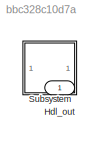
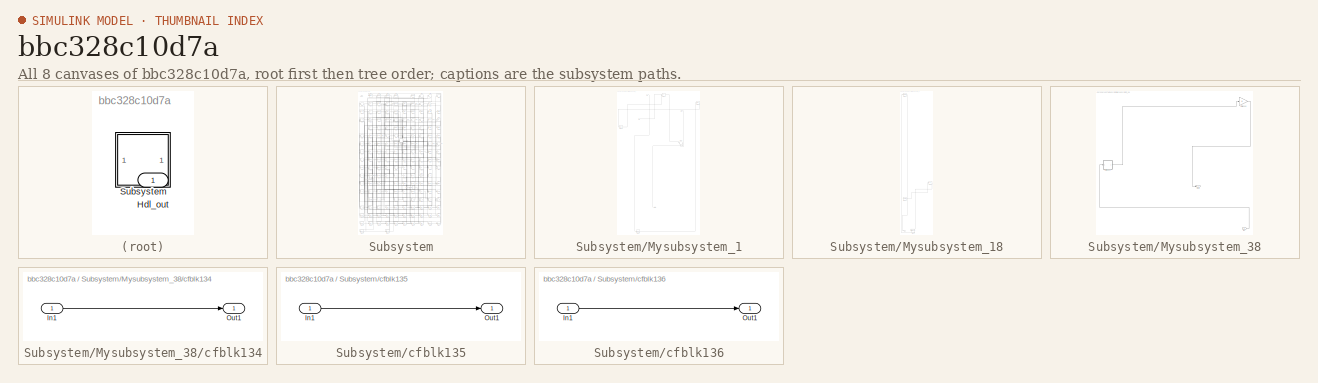
[diagram: thumbnail index - all 8 canvases of the model, root first then tree order]
MODEL slx_bbc328c10d7a
KIND model
CONFIG AbsTol = auto
CONFIG EnableMultiTasking = off
CONFIG FixedStep = auto
CONFIG MaxStep = auto
CONFIG MinStep = auto
CONFIG RelTol = 1e-3
CONFIG SampleTimeConstraint = Unconstrained
CONFIG SolverName = VariableStepAuto
CONFIG StartTime = 0.0
CONFIG StopTime = 10.0
BLOCK [Outport] Hdl_out
  OutDataTypeStr = uint8
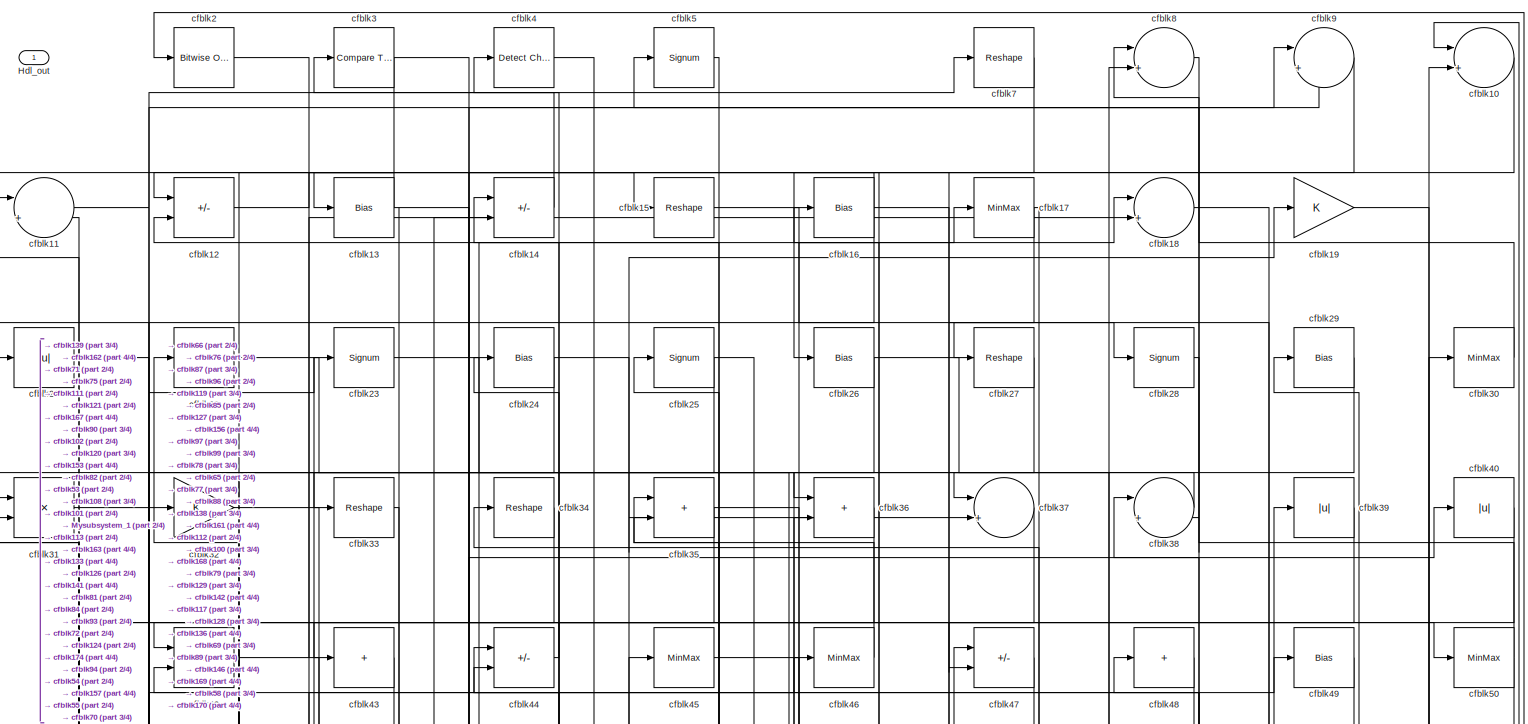
[diagram: Subsystem - part 1/4, full width, top band]
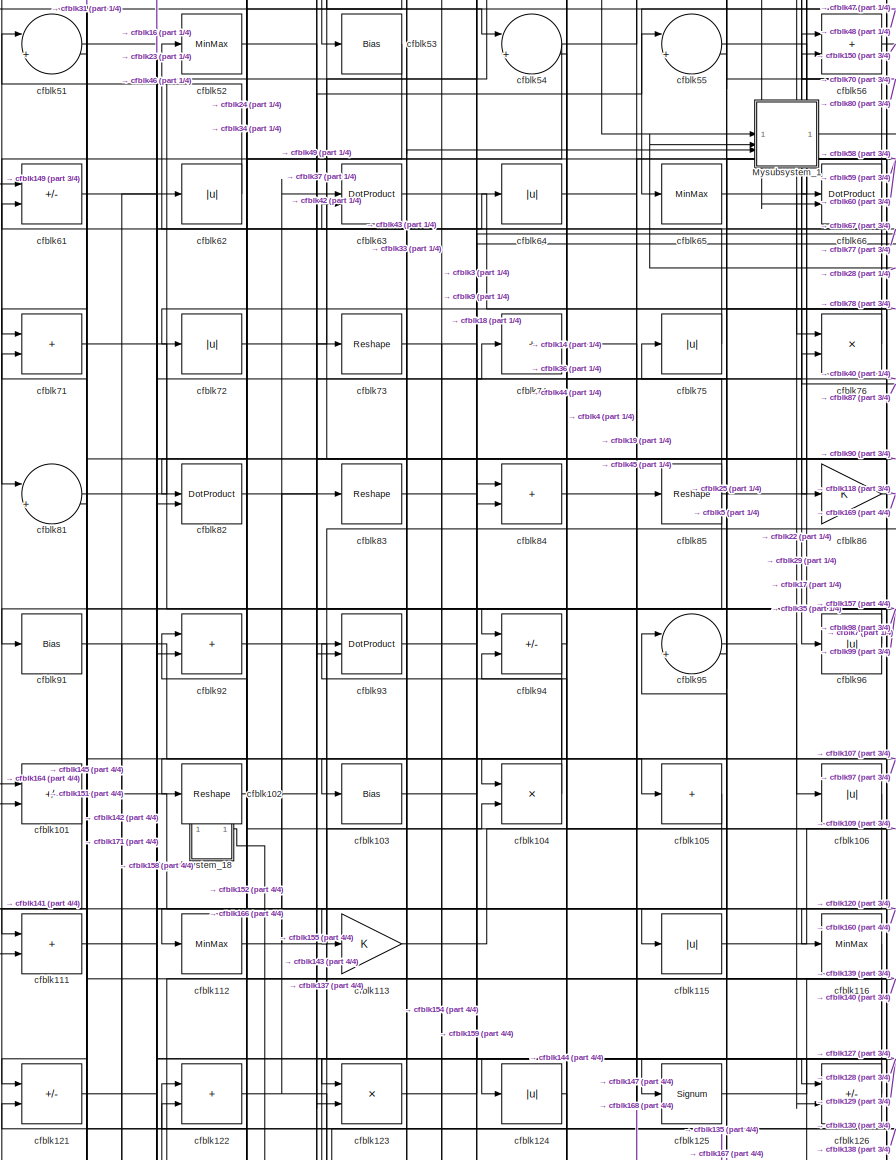
[diagram: Subsystem - part 2/4, middle left region]
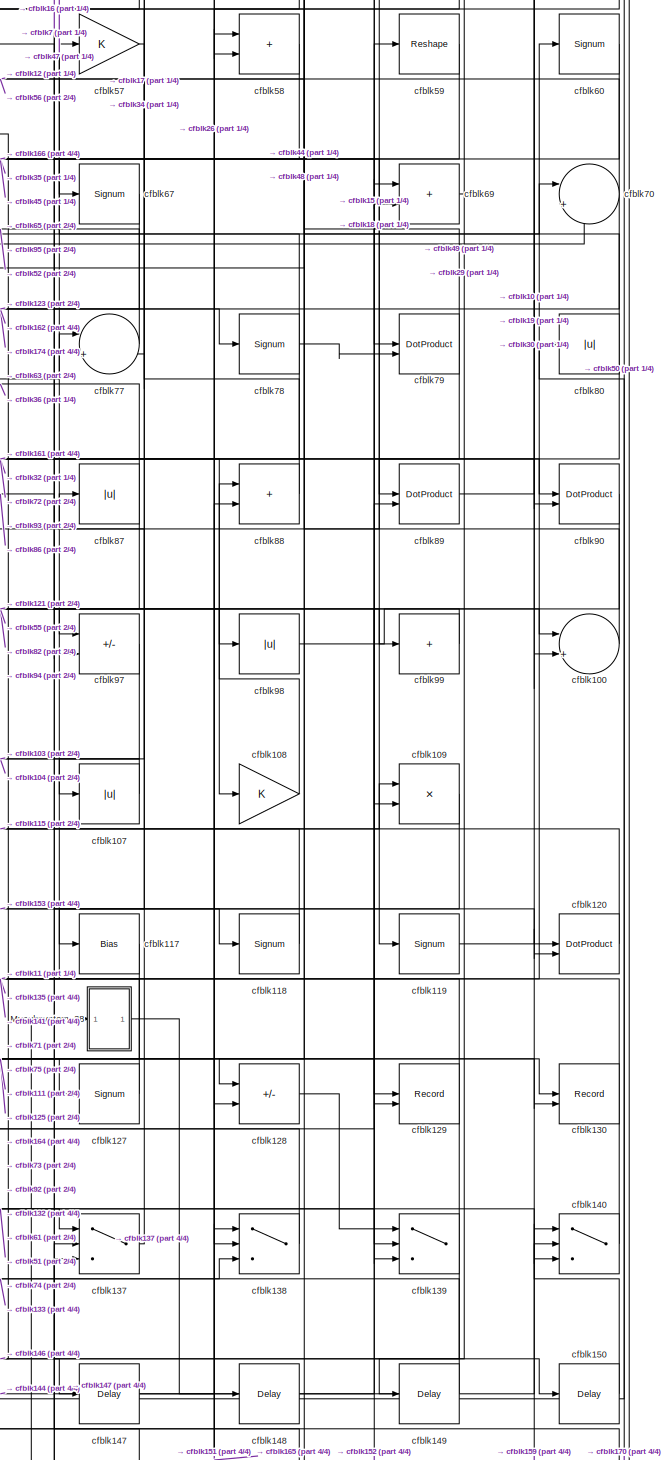
[diagram: Subsystem - part 3/4, middle right region]
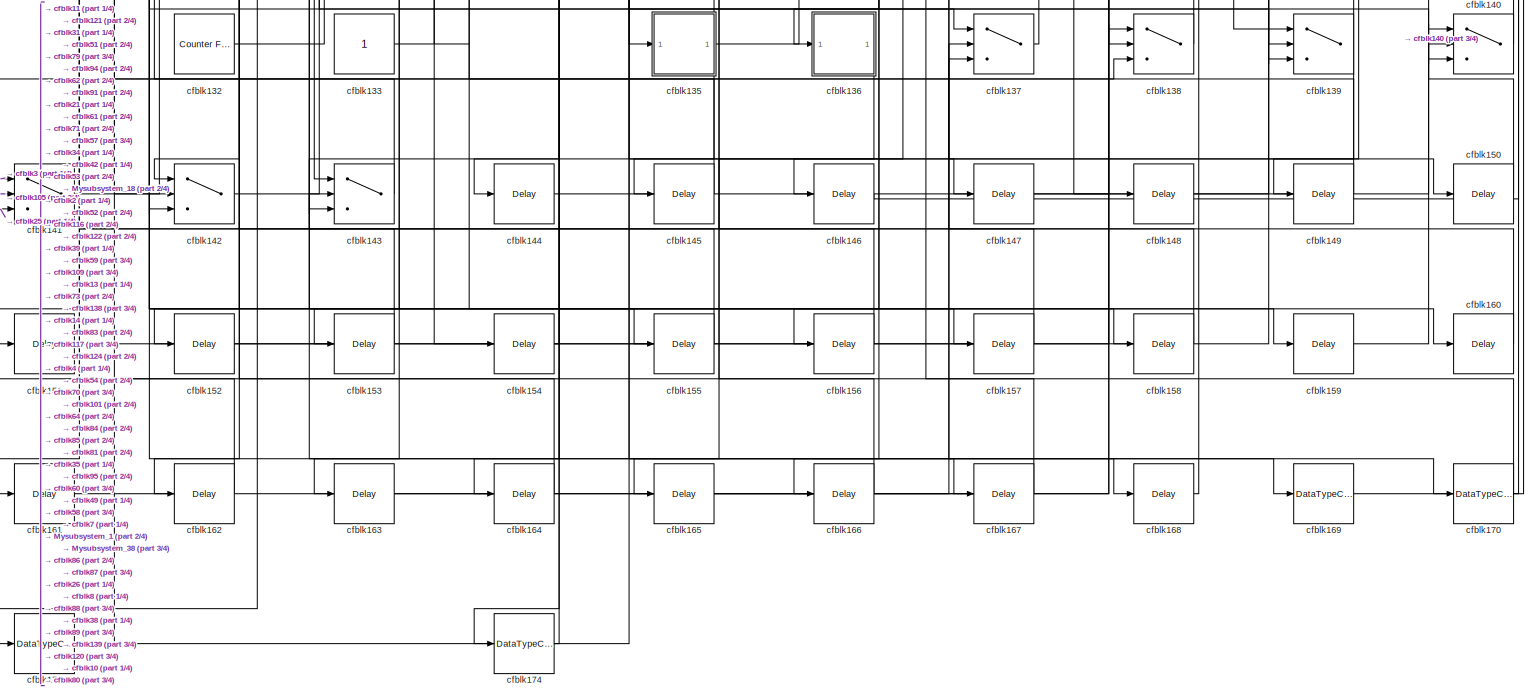
[diagram: Subsystem - part 4/4, full width, bottom band]
BLOCK [SubSystem] Subsystem
BLOCK [Outport] Subsystem/Hdl_out
  OutDataTypeStr = uint8
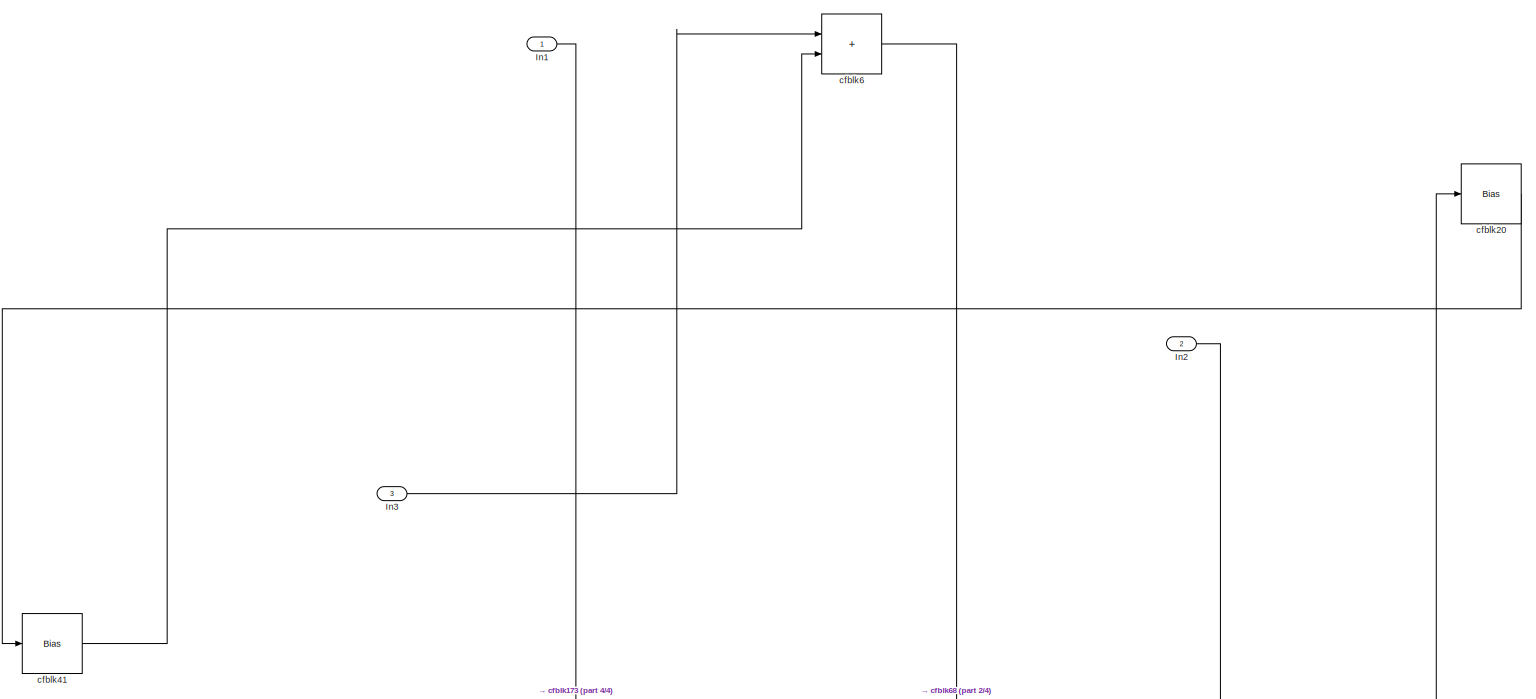
[diagram: Subsystem/Mysubsystem_1 - part 1/4, full width, top band]
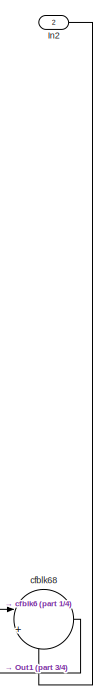
[diagram: Subsystem/Mysubsystem_1 - part 2/4, top right region]
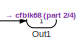
[diagram: Subsystem/Mysubsystem_1 - part 3/4, bottom center region]
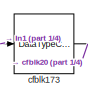
[diagram: Subsystem/Mysubsystem_1 - part 4/4, bottom left region]
BLOCK [SubSystem] Subsystem/Mysubsystem_1
  RTWFcnName = Mysubsystem_1
  RTWFcnNameOpts = User specified
  RTWFileNameOpts = Use function name
  RTWSystemCode = Reusable function
  TreatAsAtomicUnit = on
BLOCK [Inport] Subsystem/Mysubsystem_1/In1
BLOCK [Inport] Subsystem/Mysubsystem_1/In2
  Port = 2
BLOCK [Inport] Subsystem/Mysubsystem_1/In3
  Port = 3
BLOCK [Outport] Subsystem/Mysubsystem_1/Out1
BLOCK [DataTypeConversion] Subsystem/Mysubsystem_1/cfblk173
  OutDataTypeStr = uint8
  RndMeth = Floor
  SaturateOnIntegerOverflow = off
BLOCK [Bias] Subsystem/Mysubsystem_1/cfblk20
  Bias = 0.0
  SaturateOnIntegerOverflow = off
BLOCK [Bias] Subsystem/Mysubsystem_1/cfblk41
  Bias = 0.0
  SaturateOnIntegerOverflow = off
BLOCK [Sum] Subsystem/Mysubsystem_1/cfblk6
  IconShape = rectangular
BLOCK [Sum] Subsystem/Mysubsystem_1/cfblk68
  Inputs = |++
BLOCK [SubSystem] Subsystem/Mysubsystem_18
  RTWFcnName = Mysubsystem_18
  RTWFcnNameOpts = User specified
  RTWFileNameOpts = Use function name
  RTWSystemCode = Reusable function
  TreatAsAtomicUnit = on
BLOCK [Outport] Subsystem/Mysubsystem_18/Y
BLOCK [Reference] Subsystem/Mysubsystem_18/cfblk1  REF=hdlsllib/Logic and Bit
Operations/Detect Rise
Nonnegative
  SourceBlock = hdlsllib/Logic and Bit\nOperations/Detect Rise\nNonnegative
  SourceType = Detect Rise Nonnegative
BLOCK [Abs] Subsystem/Mysubsystem_18/cfblk114
  SaturateOnIntegerOverflow = off
BLOCK [Reference] Subsystem/Mysubsystem_18/cfblk131  REF=hdlsllib/Sources/Counter
Free-Running
  SourceBlock = hdlsllib/Sources/Counter\nFree-Running
  SourceType = Counter Free-Running
BLOCK [DataTypeConversion] Subsystem/Mysubsystem_18/cfblk172
  OutDataTypeStr = uint8
  RndMeth = Floor
  SaturateOnIntegerOverflow = off
BLOCK [SubSystem] Subsystem/Mysubsystem_38
  RTWFcnName = Mysubsystem_38
  RTWFcnNameOpts = User specified
  RTWFileNameOpts = Use function name
  RTWSystemCode = Reusable function
  TreatAsAtomicUnit = on
BLOCK [Inport] Subsystem/Mysubsystem_38/In1
BLOCK [Outport] Subsystem/Mysubsystem_38/Out1
BLOCK [Gain] Subsystem/Mysubsystem_38/cfblk110
BLOCK [SubSystem] Subsystem/Mysubsystem_38/cfblk134
  LibrarySourceBlock = hdlsllib/Ports &\nSubsystems/Subsystem
BLOCK [Inport] Subsystem/Mysubsystem_38/cfblk134/In1
BLOCK [Outport] Subsystem/Mysubsystem_38/cfblk134/Out1
BLOCK [Sum] Subsystem/cfblk10
  Inputs = |++
  OutDataTypeStr = uint8
BLOCK [Sum] Subsystem/cfblk100
  Inputs = |++
  OutDataTypeStr = uint8
BLOCK [Sum] Subsystem/cfblk101
  IconShape = rectangular
  Inputs = +-
  OutDataTypeStr = uint8
BLOCK [Reshape] Subsystem/cfblk102
BLOCK [Bias] Subsystem/cfblk103
  Bias = 0.0
  SaturateOnIntegerOverflow = off
BLOCK [Product] Subsystem/cfblk104
  Inputs = */
  OutDataTypeStr = uint8
  RndMeth = Zero
  SaturateOnIntegerOverflow = on
BLOCK [Sum] Subsystem/cfblk105
  IconShape = rectangular
  Inputs = +
  OutDataTypeStr = uint8
BLOCK [Abs] Subsystem/cfblk106
  OutDataTypeStr = uint8
  SaturateOnIntegerOverflow = off
BLOCK [Abs] Subsystem/cfblk107
  OutDataTypeStr = uint8
  SaturateOnIntegerOverflow = off
BLOCK [Gain] Subsystem/cfblk108
  OutDataTypeStr = uint8
BLOCK [Product] Subsystem/cfblk109
  Inputs = */
  OutDataTypeStr = uint8
  RndMeth = Zero
  SaturateOnIntegerOverflow = on
BLOCK [Sum] Subsystem/cfblk11
  Inputs = |++
  OutDataTypeStr = uint8
BLOCK [Sum] Subsystem/cfblk111
  IconShape = rectangular
  OutDataTypeStr = uint8
BLOCK [MinMax] Subsystem/cfblk112
  OutDataTypeStr = uint8
BLOCK [Gain] Subsystem/cfblk113
  OutDataTypeStr = uint8
BLOCK [Abs] Subsystem/cfblk115
  OutDataTypeStr = uint8
  SaturateOnIntegerOverflow = off
BLOCK [MinMax] Subsystem/cfblk116
  OutDataTypeStr = uint8
BLOCK [Bias] Subsystem/cfblk117
  Bias = 0.0
  SaturateOnIntegerOverflow = off
BLOCK [Signum] Subsystem/cfblk118
BLOCK [Signum] Subsystem/cfblk119
BLOCK [Sum] Subsystem/cfblk12
  IconShape = rectangular
  Inputs = +-
  OutDataTypeStr = uint8
BLOCK [DotProduct] Subsystem/cfblk120
  OutDataTypeStr = uint8
BLOCK [Sum] Subsystem/cfblk121
  IconShape = rectangular
  Inputs = +-
  OutDataTypeStr = uint8
BLOCK [Sum] Subsystem/cfblk122
  IconShape = rectangular
  OutDataTypeStr = uint8
BLOCK [Product] Subsystem/cfblk123
  Inputs = */
  OutDataTypeStr = uint8
  RndMeth = Zero
  SaturateOnIntegerOverflow = on
BLOCK [Abs] Subsystem/cfblk124
  OutDataTypeStr = uint8
  SaturateOnIntegerOverflow = off
BLOCK [Signum] Subsystem/cfblk125
BLOCK [Sum] Subsystem/cfblk126
  IconShape = rectangular
  Inputs = +-
  OutDataTypeStr = uint8
BLOCK [Signum] Subsystem/cfblk127
BLOCK [Sum] Subsystem/cfblk128
  IconShape = rectangular
  Inputs = +-
  OutDataTypeStr = uint8
BLOCK [Record] Subsystem/cfblk129
  CompatibilityTag = XY
  FileSettingsInternal = {"entries":[{"content":{"excelSettings":{"content":{},"type":"Streamout.ExcelSettings"}},"type":"Streamout.FileSettingStorage","uuid":""}],"packageUris":["http:\/\/schema.mathworks.com\/mf0\/streamout_blocks\/R2020a"],"version":"1.0"}
  Layout = [1 1]
  SignalsInternal = {"entries":[{"content":{"signals":[{"content":{"blockPath":[],"dimensions":[1],"domain":"","lineColor":"#a2142f","plots":[1],"port":1,"signalID":19440,"signalName":"cfblk18"},"type":"RecordBlkView.Signal","uuid":""},{"content":{"blockPath":[],"dimensions":[1],"domain":"","lineColor":"#139fff","plots":[1],"port":2,"signalID":19443,"signalName":"cfblk65"},"type":"RecordBlkView.Signal","uuid":""}]},"...<+142ch>
  VisualizationBindings = {"xyplotplugin":{"info":[{"series":[{"bindingParametersList":[{"parameter":"X-Axis","signalID":19440,"signalName":"cfblk18"},{"parameter":"Y-Axis","signalID":19443,"signalName":"cfblk65"}],"seriesID":55140}],"subplotID":1}]}}
  st = -1
BLOCK [Bias] Subsystem/cfblk13
  Bias = 0.0
  SaturateOnIntegerOverflow = off
BLOCK [Record] Subsystem/cfblk130
  CompatibilityTag = XY
  FileSettingsInternal = {"entries":[{"content":{"excelSettings":{"content":{},"type":"Streamout.ExcelSettings"}},"type":"Streamout.FileSettingStorage","uuid":""}],"packageUris":["http:\/\/schema.mathworks.com\/mf0\/streamout_blocks\/R2020a"],"version":"1.0"}
  Layout = [1 1]
  SignalsInternal = {"entries":[{"content":{"signals":[{"content":{"blockPath":[],"dimensions":[1],"domain":"","lineColor":"#a2142f","plots":[1],"port":1,"signalID":19432,"signalName":"cfblk92"},"type":"RecordBlkView.Signal","uuid":""},{"content":{"blockPath":[],"dimensions":[1],"domain":"","lineColor":"#139fff","plots":[1],"port":2,"signalID":19435,"signalName":"cfblk73"},"type":"RecordBlkView.Signal","uuid":""}]},"...<+142ch>
  VisualizationBindings = {"xyplotplugin":{"info":[{"series":[{"bindingParametersList":[{"parameter":"X-Axis","signalID":19432,"signalName":"cfblk92"},{"parameter":"Y-Axis","signalID":19435,"signalName":"cfblk73"}],"seriesID":11341}],"subplotID":1}]}}
  st = -1
BLOCK [Reference] Subsystem/cfblk132  REF=hdlsllib/Sources/Counter
Free-Running
  SourceBlock = hdlsllib/Sources/Counter\nFree-Running
  SourceType = Counter Free-Running
BLOCK [Constant] Subsystem/cfblk133
  OutDataTypeStr = uint8
  SampleTime = -1
BLOCK [SubSystem] Subsystem/cfblk135
  LibrarySourceBlock = hdlsllib/Ports &\nSubsystems/Subsystem
BLOCK [Inport] Subsystem/cfblk135/In1
BLOCK [Outport] Subsystem/cfblk135/Out1
BLOCK [SubSystem] Subsystem/cfblk136
  LibrarySourceBlock = hdlsllib/Ports &\nSubsystems/Subsystem
BLOCK [Inport] Subsystem/cfblk136/In1
BLOCK [Outport] Subsystem/cfblk136/Out1
BLOCK [Switch] Subsystem/cfblk137
  InputSameDT = off
  OutDataTypeStr = uint8
  SaturateOnIntegerOverflow = off
BLOCK [Switch] Subsystem/cfblk138
  InputSameDT = off
  OutDataTypeStr = uint8
  SaturateOnIntegerOverflow = off
BLOCK [Switch] Subsystem/cfblk139
  InputSameDT = off
  OutDataTypeStr = uint8
  SaturateOnIntegerOverflow = off
BLOCK [Sum] Subsystem/cfblk14
  IconShape = rectangular
  Inputs = +-
  OutDataTypeStr = uint8
BLOCK [Switch] Subsystem/cfblk140
  InputSameDT = off
  OutDataTypeStr = uint8
  SaturateOnIntegerOverflow = off
BLOCK [Switch] Subsystem/cfblk141
  InputSameDT = off
  OutDataTypeStr = uint8
  SaturateOnIntegerOverflow = off
BLOCK [Switch] Subsystem/cfblk142
  InputSameDT = off
  OutDataTypeStr = uint8
  SaturateOnIntegerOverflow = off
BLOCK [Switch] Subsystem/cfblk143
  InputSameDT = off
  OutDataTypeStr = uint8
  SaturateOnIntegerOverflow = off
BLOCK [Delay] Subsystem/cfblk144
  InputPortMap = u0
  SampleTime = 1
BLOCK [Delay] Subsystem/cfblk145
  InputPortMap = u0
  SampleTime = 1
BLOCK [Delay] Subsystem/cfblk146
  InputPortMap = u0
  SampleTime = 1
BLOCK [Delay] Subsystem/cfblk147
  InputPortMap = u0
  SampleTime = 1
BLOCK [Delay] Subsystem/cfblk148
  InputPortMap = u0
  SampleTime = 1
BLOCK [Delay] Subsystem/cfblk149
  InputPortMap = u0
  SampleTime = 1
BLOCK [Reshape] Subsystem/cfblk15
BLOCK [Delay] Subsystem/cfblk150
  InputPortMap = u0
  SampleTime = 1
BLOCK [Delay] Subsystem/cfblk151
  InputPortMap = u0
  SampleTime = 1
BLOCK [Delay] Subsystem/cfblk152
  InputPortMap = u0
  SampleTime = 1
BLOCK [Delay] Subsystem/cfblk153
  InputPortMap = u0
  SampleTime = 1
BLOCK [Delay] Subsystem/cfblk154
  InputPortMap = u0
  SampleTime = 1
BLOCK [Delay] Subsystem/cfblk155
  InputPortMap = u0
  SampleTime = 1
BLOCK [Delay] Subsystem/cfblk156
  InputPortMap = u0
  SampleTime = 1
BLOCK [Delay] Subsystem/cfblk157
  InputPortMap = u0
  SampleTime = 1
BLOCK [Delay] Subsystem/cfblk158
  InputPortMap = u0
  SampleTime = 1
BLOCK [Delay] Subsystem/cfblk159
  InputPortMap = u0
  SampleTime = 1
BLOCK [Bias] Subsystem/cfblk16
  Bias = 0.0
  SaturateOnIntegerOverflow = off
BLOCK [Delay] Subsystem/cfblk160
  InputPortMap = u0
  SampleTime = 1
BLOCK [Delay] Subsystem/cfblk161
  InputPortMap = u0
  SampleTime = 1
BLOCK [Delay] Subsystem/cfblk162
  InputPortMap = u0
  SampleTime = 1
BLOCK [Delay] Subsystem/cfblk163
  InputPortMap = u0
  SampleTime = 1
BLOCK [Delay] Subsystem/cfblk164
  InputPortMap = u0
  SampleTime = 1
BLOCK [Delay] Subsystem/cfblk165
  InputPortMap = u0
  SampleTime = 1
BLOCK [Delay] Subsystem/cfblk166
  InputPortMap = u0
  SampleTime = 1
BLOCK [Delay] Subsystem/cfblk167
  InputPortMap = u0
  SampleTime = 1
BLOCK [Delay] Subsystem/cfblk168
  InputPortMap = u0
  SampleTime = 1
BLOCK [DataTypeConversion] Subsystem/cfblk169
  OutDataTypeStr = uint8
  RndMeth = Floor
  SaturateOnIntegerOverflow = off
BLOCK [MinMax] Subsystem/cfblk17
  OutDataTypeStr = uint8
BLOCK [DataTypeConversion] Subsystem/cfblk170
  OutDataTypeStr = uint8
  RndMeth = Floor
  SaturateOnIntegerOverflow = off
BLOCK [DataTypeConversion] Subsystem/cfblk171
  OutDataTypeStr = uint8
  RndMeth = Floor
  SaturateOnIntegerOverflow = off
BLOCK [DataTypeConversion] Subsystem/cfblk174
  OutDataTypeStr = uint8
  RndMeth = Floor
  SaturateOnIntegerOverflow = off
BLOCK [Sum] Subsystem/cfblk18
  Inputs = |++
  OutDataTypeStr = uint8
BLOCK [Gain] Subsystem/cfblk19
  OutDataTypeStr = uint8
BLOCK [Reference] Subsystem/cfblk2  REF=simulink/Logic and Bit
Operations/Bitwise
Operator
  LibrarySourceBlock = hdlsllib/Logic and Bit\nOperations/Bitwise\nOperator
  SourceBlock = simulink/Logic and Bit\nOperations/Bitwise\nOperator
  SourceType = Bitwise Operator
BLOCK [Abs] Subsystem/cfblk21
  OutDataTypeStr = uint8
  SaturateOnIntegerOverflow = off
BLOCK [Sum] Subsystem/cfblk22
  IconShape = rectangular
  Inputs = +
  OutDataTypeStr = uint8
BLOCK [Signum] Subsystem/cfblk23
BLOCK [Bias] Subsystem/cfblk24
  Bias = 0.0
  SaturateOnIntegerOverflow = off
BLOCK [Signum] Subsystem/cfblk25
BLOCK [Bias] Subsystem/cfblk26
  Bias = 0.0
  SaturateOnIntegerOverflow = off
BLOCK [Reshape] Subsystem/cfblk27
BLOCK [Signum] Subsystem/cfblk28
BLOCK [Bias] Subsystem/cfblk29
  Bias = 0.0
  SaturateOnIntegerOverflow = off
BLOCK [Reference] Subsystem/cfblk3  REF=hdlsllib/Logic and Bit
Operations/Compare
To Zero
  SourceBlock = hdlsllib/Logic and Bit\nOperations/Compare\nTo Zero
  SourceType = Compare To Zero
BLOCK [MinMax] Subsystem/cfblk30
  OutDataTypeStr = uint8
BLOCK [Product] Subsystem/cfblk31
  Inputs = */
  OutDataTypeStr = uint8
  RndMeth = Zero
  SaturateOnIntegerOverflow = on
BLOCK [Gain] Subsystem/cfblk32
  OutDataTypeStr = uint8
BLOCK [Reshape] Subsystem/cfblk33
BLOCK [Reshape] Subsystem/cfblk34
BLOCK [Sum] Subsystem/cfblk35
  IconShape = rectangular
  OutDataTypeStr = uint8
BLOCK [Sum] Subsystem/cfblk36
  IconShape = rectangular
  OutDataTypeStr = uint8
BLOCK [Sum] Subsystem/cfblk37
  Inputs = |++
  OutDataTypeStr = uint8
BLOCK [Sum] Subsystem/cfblk38
  Inputs = |++
  OutDataTypeStr = uint8
BLOCK [Abs] Subsystem/cfblk39
  OutDataTypeStr = uint8
  SaturateOnIntegerOverflow = off
BLOCK [Reference] Subsystem/cfblk4  REF=simulink/Logic and Bit
Operations/Detect
Change
  LibrarySourceBlock = hdlsllib/Logic and Bit\nOperations/Detect\nChange
  SourceBlock = simulink/Logic and Bit\nOperations/Detect\nChange
  SourceType = Detect Change
BLOCK [Abs] Subsystem/cfblk40
  OutDataTypeStr = uint8
  SaturateOnIntegerOverflow = off
BLOCK [Sum] Subsystem/cfblk42
  IconShape = rectangular
  OutDataTypeStr = uint8
BLOCK [Sum] Subsystem/cfblk43
  IconShape = rectangular
  Inputs = +
  OutDataTypeStr = uint8
BLOCK [Sum] Subsystem/cfblk44
  IconShape = rectangular
  Inputs = +-
  OutDataTypeStr = uint8
BLOCK [MinMax] Subsystem/cfblk45
  OutDataTypeStr = uint8
BLOCK [MinMax] Subsystem/cfblk46
  OutDataTypeStr = uint8
BLOCK [Sum] Subsystem/cfblk47
  IconShape = rectangular
  Inputs = +-
  OutDataTypeStr = uint8
BLOCK [Sum] Subsystem/cfblk48
  IconShape = rectangular
  Inputs = +
  OutDataTypeStr = uint8
BLOCK [Bias] Subsystem/cfblk49
  Bias = 0.0
  SaturateOnIntegerOverflow = off
BLOCK [Signum] Subsystem/cfblk5
BLOCK [MinMax] Subsystem/cfblk50
  OutDataTypeStr = uint8
BLOCK [Sum] Subsystem/cfblk51
  Inputs = |++
  OutDataTypeStr = uint8
BLOCK [MinMax] Subsystem/cfblk52
  OutDataTypeStr = uint8
BLOCK [Bias] Subsystem/cfblk53
  Bias = 0.0
  SaturateOnIntegerOverflow = off
BLOCK [Sum] Subsystem/cfblk54
  Inputs = |++
  OutDataTypeStr = uint8
BLOCK [Sum] Subsystem/cfblk55
  Inputs = |++
  OutDataTypeStr = uint8
BLOCK [Sum] Subsystem/cfblk56
  IconShape = rectangular
  OutDataTypeStr = uint8
BLOCK [Gain] Subsystem/cfblk57
  OutDataTypeStr = uint8
BLOCK [Sum] Subsystem/cfblk58
  IconShape = rectangular
  OutDataTypeStr = uint8
BLOCK [Reshape] Subsystem/cfblk59
BLOCK [Signum] Subsystem/cfblk60
BLOCK [Sum] Subsystem/cfblk61
  IconShape = rectangular
  Inputs = +-
  OutDataTypeStr = uint8
BLOCK [Abs] Subsystem/cfblk62
  OutDataTypeStr = uint8
  SaturateOnIntegerOverflow = off
BLOCK [DotProduct] Subsystem/cfblk63
  OutDataTypeStr = uint8
BLOCK [Abs] Subsystem/cfblk64
  OutDataTypeStr = uint8
  SaturateOnIntegerOverflow = off
BLOCK [MinMax] Subsystem/cfblk65
  OutDataTypeStr = uint8
BLOCK [DotProduct] Subsystem/cfblk66
  OutDataTypeStr = uint8
BLOCK [Signum] Subsystem/cfblk67
BLOCK [Sum] Subsystem/cfblk69
  IconShape = rectangular
  OutDataTypeStr = uint8
BLOCK [Reshape] Subsystem/cfblk7
BLOCK [Sum] Subsystem/cfblk70
  Inputs = |++
  OutDataTypeStr = uint8
BLOCK [Sum] Subsystem/cfblk71
  IconShape = rectangular
  OutDataTypeStr = uint8
BLOCK [Abs] Subsystem/cfblk72
  OutDataTypeStr = uint8
  SaturateOnIntegerOverflow = off
BLOCK [Reshape] Subsystem/cfblk73
BLOCK [Sum] Subsystem/cfblk74
  IconShape = rectangular
  Inputs = +
  OutDataTypeStr = uint8
BLOCK [Abs] Subsystem/cfblk75
  OutDataTypeStr = uint8
  SaturateOnIntegerOverflow = off
BLOCK [Product] Subsystem/cfblk76
  Inputs = */
  OutDataTypeStr = uint8
  RndMeth = Zero
  SaturateOnIntegerOverflow = on
BLOCK [Sum] Subsystem/cfblk77
  Inputs = |++
  OutDataTypeStr = uint8
BLOCK [Signum] Subsystem/cfblk78
BLOCK [DotProduct] Subsystem/cfblk79
  OutDataTypeStr = uint8
BLOCK [Sum] Subsystem/cfblk8
  Inputs = |++
  OutDataTypeStr = uint8
BLOCK [Abs] Subsystem/cfblk80
  OutDataTypeStr = uint8
  SaturateOnIntegerOverflow = off
BLOCK [Sum] Subsystem/cfblk81
  Inputs = |++
  OutDataTypeStr = uint8
BLOCK [DotProduct] Subsystem/cfblk82
  OutDataTypeStr = uint8
BLOCK [Reshape] Subsystem/cfblk83
BLOCK [Sum] Subsystem/cfblk84
  IconShape = rectangular
  OutDataTypeStr = uint8
BLOCK [Reshape] Subsystem/cfblk85
BLOCK [Gain] Subsystem/cfblk86
  OutDataTypeStr = uint8
BLOCK [Abs] Subsystem/cfblk87
  OutDataTypeStr = uint8
  SaturateOnIntegerOverflow = off
BLOCK [Sum] Subsystem/cfblk88
  IconShape = rectangular
  OutDataTypeStr = uint8
BLOCK [DotProduct] Subsystem/cfblk89
  OutDataTypeStr = uint8
BLOCK [Sum] Subsystem/cfblk9
  Inputs = |++
  OutDataTypeStr = uint8
BLOCK [DotProduct] Subsystem/cfblk90
  OutDataTypeStr = uint8
BLOCK [Bias] Subsystem/cfblk91
  Bias = 0.0
  SaturateOnIntegerOverflow = off
BLOCK [Sum] Subsystem/cfblk92
  IconShape = rectangular
  OutDataTypeStr = uint8
BLOCK [DotProduct] Subsystem/cfblk93
  OutDataTypeStr = uint8
BLOCK [Sum] Subsystem/cfblk94
  IconShape = rectangular
  Inputs = +-
  OutDataTypeStr = uint8
BLOCK [Sum] Subsystem/cfblk95
  Inputs = |++
  OutDataTypeStr = uint8
BLOCK [Abs] Subsystem/cfblk96
  OutDataTypeStr = uint8
  SaturateOnIntegerOverflow = off
BLOCK [Sum] Subsystem/cfblk97
  IconShape = rectangular
  Inputs = +-
  OutDataTypeStr = uint8
BLOCK [Abs] Subsystem/cfblk98
  OutDataTypeStr = uint8
  SaturateOnIntegerOverflow = off
BLOCK [Sum] Subsystem/cfblk99
  IconShape = rectangular
  Inputs = +
  OutDataTypeStr = uint8
LINE Subsystem/Mysubsystem_1/In1:1 -> Subsystem/Mysubsystem_1/cfblk173:1
LINE Subsystem/Mysubsystem_1/In2:1 -> Subsystem/Mysubsystem_1/cfblk68:2
LINE Subsystem/Mysubsystem_1/In3:1 -> Subsystem/Mysubsystem_1/cfblk6:1
LINE Subsystem/Mysubsystem_1/cfblk173:1 -> Subsystem/Mysubsystem_1/cfblk20:1
LINE Subsystem/Mysubsystem_1/cfblk20:1 -> Subsystem/Mysubsystem_1/cfblk41:1
LINE Subsystem/Mysubsystem_1/cfblk41:1 -> Subsystem/Mysubsystem_1/cfblk6:2
LINE Subsystem/Mysubsystem_1/cfblk68:1 -> Subsystem/Mysubsystem_1/Out1:1
LINE Subsystem/Mysubsystem_1/cfblk6:1 -> Subsystem/Mysubsystem_1/cfblk68:1
LINE Subsystem/Mysubsystem_18/cfblk114:1 -> Subsystem/Mysubsystem_18/cfblk172:1
LINE Subsystem/Mysubsystem_18/cfblk131:1 -> Subsystem/Mysubsystem_18/cfblk114:1
LINE Subsystem/Mysubsystem_18/cfblk172:1 -> Subsystem/Mysubsystem_18/cfblk1:1
LINE Subsystem/Mysubsystem_18/cfblk1:1 -> Subsystem/Mysubsystem_18/Y:1
LINE Subsystem/Mysubsystem_18:1 -> Subsystem/cfblk171:1
LINE Subsystem/Mysubsystem_1:1 -> Subsystem/cfblk145:1
LINE Subsystem/Mysubsystem_38/In1:1 -> Subsystem/Mysubsystem_38/cfblk134:1
LINE Subsystem/Mysubsystem_38/cfblk110:1 -> Subsystem/Mysubsystem_38/Out1:1
LINE Subsystem/Mysubsystem_38/cfblk134/In1:1 -> Subsystem/Mysubsystem_38/cfblk134/Out1:1
LINE Subsystem/Mysubsystem_38/cfblk134:1 -> Subsystem/Mysubsystem_38/cfblk110:1
LINE Subsystem/Mysubsystem_38:1 -> Subsystem/cfblk148:1
LINE Subsystem/cfblk100:1 -> Subsystem/cfblk48:1
NET Subsystem/cfblk101:1 -> Subsystem/cfblk111:2, Subsystem/cfblk135:1
LINE Subsystem/cfblk102:1 -> Subsystem/cfblk55:1
LINE Subsystem/cfblk103:1 -> Subsystem/cfblk70:1
LINE Subsystem/cfblk104:1 -> Subsystem/cfblk93:1
LINE Subsystem/cfblk105:1 -> Subsystem/cfblk141:2
LINE Subsystem/cfblk106:1 -> Subsystem/cfblk116:1
LINE Subsystem/cfblk107:1 -> Subsystem/cfblk103:1
LINE Subsystem/cfblk108:1 -> Subsystem/cfblk88:1
LINE Subsystem/cfblk109:1 -> Subsystem/cfblk153:1
LINE Subsystem/cfblk10:1 -> Subsystem/cfblk26:1
NET Subsystem/cfblk111:1 -> Subsystem/cfblk128:2, Subsystem/cfblk23:1, Subsystem/cfblk9:2
NET Subsystem/cfblk112:1 -> Subsystem/cfblk104:2, Subsystem/cfblk83:1
LINE Subsystem/cfblk113:1 -> Subsystem/cfblk45:1
LINE Subsystem/cfblk115:1 -> Subsystem/cfblk109:1
LINE Subsystem/cfblk116:1 -> Subsystem/cfblk143:1
LINE Subsystem/cfblk117:1 -> Subsystem/cfblk164:1
LINE Subsystem/cfblk118:1 -> Subsystem/cfblk94:2
LINE Subsystem/cfblk119:1 -> Subsystem/cfblk30:1
NET Subsystem/cfblk11:1 -> Subsystem/cfblk7:1, Subsystem/cfblk90:1
LINE Subsystem/cfblk120:1 -> Subsystem/cfblk32:1
NET Subsystem/cfblk121:1 -> Subsystem/cfblk46:1, Subsystem/cfblk92:2
NET Subsystem/cfblk122:1 -> Subsystem/cfblk137:1, Subsystem/cfblk63:1
LINE Subsystem/cfblk123:1 -> Subsystem/cfblk84:1
LINE Subsystem/cfblk124:1 -> Subsystem/cfblk144:1
LINE Subsystem/cfblk125:1 -> Subsystem/cfblk127:1
NET Subsystem/cfblk126:1 -> Subsystem/cfblk63:2, Subsystem/cfblk92:1
LINE Subsystem/cfblk127:1 -> Subsystem/cfblk16:1
LINE Subsystem/cfblk128:1 -> Subsystem/cfblk139:1
LINE Subsystem/cfblk12:1 -> Subsystem/cfblk15:1
LINE Subsystem/cfblk132:1 -> Subsystem/cfblk59:1
NET Subsystem/cfblk133:1 -> Subsystem/cfblk138:3, Subsystem/cfblk14:2, Subsystem/cfblk70:2
LINE Subsystem/cfblk135/In1:1 -> Subsystem/cfblk135/Out1:1
NET Subsystem/cfblk135:1 -> Subsystem/cfblk143:3, Subsystem/cfblk60:1, Subsystem/cfblk81:2
LINE Subsystem/cfblk136/In1:1 -> Subsystem/cfblk136/Out1:1
LINE Subsystem/cfblk136:1 -> Subsystem/cfblk165:1
LINE Subsystem/cfblk137:1 -> Subsystem/cfblk87:1
LINE Subsystem/cfblk138:1 -> Subsystem/cfblk61:2
NET Subsystem/cfblk139:1 -> Subsystem/cfblk11:2, Subsystem/cfblk146:1, Subsystem/cfblk71:2
NET Subsystem/cfblk13:1 -> Subsystem/cfblk12:1, Subsystem/cfblk163:1, Subsystem/cfblk50:1
LINE Subsystem/cfblk140:1 -> Subsystem/cfblk75:1
LINE Subsystem/cfblk141:1 -> Subsystem/cfblk57:1
LINE Subsystem/cfblk142:1 -> Subsystem/cfblk39:1
LINE Subsystem/cfblk143:1 -> Subsystem/cfblk122:1
LINE Subsystem/cfblk144:1 -> Subsystem/cfblk140:2
LINE Subsystem/cfblk145:1 -> Subsystem/cfblk51:2
LINE Subsystem/cfblk146:1 -> Subsystem/cfblk10:1
LINE Subsystem/cfblk147:1 -> Subsystem/cfblk138:1
LINE Subsystem/cfblk148:1 -> Subsystem/cfblk69:1
LINE Subsystem/cfblk149:1 -> Subsystem/cfblk61:1
LINE Subsystem/cfblk14:1 -> Subsystem/cfblk3:1
LINE Subsystem/cfblk150:1 -> Subsystem/cfblk140:1
LINE Subsystem/cfblk151:1 -> Subsystem/cfblk88:2
LINE Subsystem/cfblk152:1 -> Subsystem/cfblk89:2
LINE Subsystem/cfblk153:1 -> Subsystem/cfblk42:2
LINE Subsystem/cfblk154:1 -> Subsystem/cfblk54:2
LINE Subsystem/cfblk155:1 -> Subsystem/cfblk143:2
LINE Subsystem/cfblk156:1 -> Subsystem/cfblk11:1
LINE Subsystem/cfblk157:1 -> Subsystem/cfblk35:2
LINE Subsystem/cfblk158:1 -> Subsystem/cfblk137:2
LINE Subsystem/cfblk159:1 -> Subsystem/cfblk120:1
LINE Subsystem/cfblk15:1 -> Subsystem/cfblk79:1
LINE Subsystem/cfblk160:1 -> Subsystem/cfblk121:2
LINE Subsystem/cfblk161:1 -> Subsystem/cfblk8:2
LINE Subsystem/cfblk162:1 -> Subsystem/cfblk31:2
LINE Subsystem/cfblk163:1 -> Subsystem/cfblk137:3
LINE Subsystem/cfblk164:1 -> Subsystem/cfblk101:1
LINE Subsystem/cfblk165:1 -> Subsystem/cfblk58:1
LINE Subsystem/cfblk166:1 -> Subsystem/cfblk122:2
LINE Subsystem/cfblk167:1 -> Subsystem/cfblk95:1
LINE Subsystem/cfblk168:1 -> Subsystem/cfblk38:1
LINE Subsystem/cfblk169:1 -> Subsystem/cfblk2:1
NET Subsystem/cfblk16:1 -> Subsystem/cfblk13:1, Subsystem/cfblk21:1, Subsystem/cfblk28:1, Subsystem/cfblk82:2, Subsystem/cfblk99:1
NET Subsystem/cfblk170:1 -> Subsystem/Mysubsystem_38:1, Subsystem/cfblk80:1
NET Subsystem/cfblk171:1 -> Subsystem/cfblk62:1, Subsystem/cfblk85:1
LINE Subsystem/cfblk174:1 -> Subsystem/cfblk4:1
NET Subsystem/cfblk17:1 -> Subsystem/cfblk27:1, Subsystem/cfblk77:2
LINE Subsystem/cfblk18:1 -> Subsystem/cfblk129:1
LINE Subsystem/cfblk19:1 -> Subsystem/cfblk100:2
LINE Subsystem/cfblk21:1 -> Subsystem/cfblk167:1
NET Subsystem/cfblk22:1 -> Subsystem/cfblk43:1, Subsystem/cfblk76:1
LINE Subsystem/cfblk23:1 -> Subsystem/cfblk36:1
NET Subsystem/cfblk24:1 -> Subsystem/cfblk37:2, Subsystem/cfblk72:1
NET Subsystem/cfblk25:1 -> Subsystem/cfblk141:3, Subsystem/cfblk66:2
NET Subsystem/cfblk26:1 -> Subsystem/cfblk138:2, Subsystem/cfblk142:3
LINE Subsystem/cfblk27:1 -> Subsystem/cfblk37:1
LINE Subsystem/cfblk28:1 -> Subsystem/Mysubsystem_1:2
LINE Subsystem/cfblk29:1 -> Subsystem/cfblk96:1
LINE Subsystem/cfblk2:1 -> Subsystem/cfblk170:1
LINE Subsystem/cfblk30:1 -> Subsystem/cfblk8:1
LINE Subsystem/cfblk31:1 -> Subsystem/cfblk22:1
LINE Subsystem/cfblk32:1 -> Subsystem/cfblk108:1
NET Subsystem/cfblk33:1 -> Subsystem/Mysubsystem_1:3, Subsystem/cfblk113:1
NET Subsystem/cfblk34:1 -> Subsystem/cfblk111:1, Subsystem/cfblk142:1
NET Subsystem/cfblk35:1 -> Subsystem/cfblk119:1, Subsystem/cfblk71:1
LINE Subsystem/cfblk36:1 -> Subsystem/cfblk124:1
LINE Subsystem/cfblk37:1 -> Subsystem/cfblk53:1
LINE Subsystem/cfblk38:1 -> Subsystem/cfblk33:1
LINE Subsystem/cfblk39:1 -> Subsystem/cfblk42:1
NET Subsystem/cfblk3:1 -> Subsystem/cfblk126:2, Subsystem/cfblk141:1
LINE Subsystem/cfblk40:1 -> Subsystem/cfblk47:2
NET Subsystem/cfblk42:1 -> Subsystem/cfblk18:2, Subsystem/cfblk54:1
LINE Subsystem/cfblk43:1 -> Subsystem/cfblk101:2
LINE Subsystem/cfblk44:1 -> Subsystem/cfblk24:1
LINE Subsystem/cfblk45:1 -> Subsystem/cfblk69:2
LINE Subsystem/cfblk46:1 -> Subsystem/cfblk35:1
LINE Subsystem/cfblk47:1 -> Subsystem/cfblk65:1
LINE Subsystem/cfblk48:1 -> Subsystem/cfblk112:1
NET Subsystem/cfblk49:1 -> Subsystem/cfblk117:1, Subsystem/cfblk128:1, Subsystem/cfblk136:1
LINE Subsystem/cfblk4:1 -> Subsystem/Mysubsystem_1:1
NET Subsystem/cfblk50:1 -> Subsystem/cfblk58:2, Subsystem/cfblk5:1
NET Subsystem/cfblk51:1 -> Subsystem/cfblk126:1, Subsystem/cfblk140:3
NET Subsystem/cfblk52:1 -> Subsystem/cfblk155:1, Subsystem/cfblk73:1
LINE Subsystem/cfblk53:1 -> Subsystem/cfblk152:1
NET Subsystem/cfblk54:1 -> Subsystem/cfblk19:1, Subsystem/cfblk81:1
LINE Subsystem/cfblk55:1 -> Subsystem/cfblk139:2
LINE Subsystem/cfblk56:1 -> Subsystem/cfblk150:1
LINE Subsystem/cfblk57:1 -> Subsystem/cfblk107:1
NET Subsystem/cfblk58:1 -> Subsystem/cfblk166:1, Subsystem/cfblk82:1
LINE Subsystem/cfblk59:1 -> Subsystem/cfblk115:1
LINE Subsystem/cfblk5:1 -> Subsystem/cfblk55:2
LINE Subsystem/cfblk60:1 -> Subsystem/cfblk95:2
NET Subsystem/cfblk61:1 -> Subsystem/cfblk120:2, Subsystem/cfblk160:1
LINE Subsystem/cfblk62:1 -> Subsystem/cfblk51:1
LINE Subsystem/cfblk63:1 -> Subsystem/cfblk78:1
NET Subsystem/cfblk64:1 -> Subsystem/cfblk168:1, Subsystem/cfblk66:1
NET Subsystem/cfblk65:1 -> Subsystem/cfblk129:2, Subsystem/cfblk67:1
NET Subsystem/cfblk66:1 -> Subsystem/cfblk125:1, Subsystem/cfblk56:2
LINE Subsystem/cfblk67:1 -> Subsystem/cfblk86:1
NET Subsystem/cfblk69:1 -> Subsystem/cfblk29:1, Subsystem/cfblk89:1
NET Subsystem/cfblk70:1 -> Subsystem/cfblk123:1, Subsystem/cfblk12:2, Subsystem/cfblk162:1, Subsystem/cfblk174:1
NET Subsystem/cfblk71:1 -> Subsystem/cfblk157:1, Subsystem/cfblk97:1
NET Subsystem/cfblk72:1 -> Subsystem/cfblk18:1, Subsystem/cfblk90:2
NET Subsystem/cfblk73:1 -> Subsystem/cfblk130:2, Subsystem/cfblk154:1
LINE Subsystem/cfblk74:1 -> Subsystem/cfblk139:3
LINE Subsystem/cfblk75:1 -> Subsystem/cfblk31:1
LINE Subsystem/cfblk76:1 -> Subsystem/cfblk25:1
LINE Subsystem/cfblk77:1 -> Subsystem/cfblk52:1
NET Subsystem/cfblk78:1 -> Subsystem/cfblk47:1, Subsystem/cfblk79:2, Subsystem/cfblk93:2
NET Subsystem/cfblk79:1 -> Subsystem/cfblk161:1, Subsystem/cfblk44:1
NET Subsystem/cfblk7:1 -> Subsystem/cfblk156:1, Subsystem/cfblk84:2, Subsystem/cfblk97:2
NET Subsystem/cfblk80:1 -> Subsystem/cfblk149:1, Subsystem/cfblk56:1
NET Subsystem/cfblk81:1 -> Subsystem/cfblk158:1, Subsystem/cfblk9:1
NET Subsystem/cfblk82:1 -> Subsystem/cfblk49:1, Subsystem/cfblk74:1, Subsystem/cfblk98:1
LINE Subsystem/cfblk83:1 -> Subsystem/cfblk159:1
LINE Subsystem/cfblk84:1 -> Subsystem/cfblk147:1
NET Subsystem/cfblk85:1 -> Subsystem/cfblk123:2, Subsystem/cfblk14:1, Subsystem/cfblk17:1
NET Subsystem/cfblk86:1 -> Subsystem/cfblk118:1, Subsystem/cfblk169:1
NET Subsystem/cfblk87:1 -> Subsystem/cfblk121:1, Subsystem/cfblk36:2
LINE Subsystem/cfblk88:1 -> Subsystem/cfblk34:1
LINE Subsystem/cfblk89:1 -> Subsystem/cfblk10:2
LINE Subsystem/cfblk8:1 -> Subsystem/cfblk38:2
LINE Subsystem/cfblk90:1 -> Subsystem/cfblk109:2
NET Subsystem/cfblk91:1 -> Subsystem/cfblk105:1, Subsystem/cfblk142:2, Subsystem/cfblk64:1, Subsystem/cfblk76:2
LINE Subsystem/cfblk92:1 -> Subsystem/cfblk130:1
NET Subsystem/cfblk93:1 -> Subsystem/cfblk40:1, Subsystem/cfblk77:1
NET Subsystem/cfblk94:1 -> Subsystem/cfblk151:1, Subsystem/cfblk44:2
LINE Subsystem/cfblk95:1 -> Subsystem/cfblk106:1
LINE Subsystem/cfblk96:1 -> Subsystem/cfblk91:1
LINE Subsystem/cfblk97:1 -> Subsystem/cfblk104:1
LINE Subsystem/cfblk98:1 -> Subsystem/cfblk100:1
LINE Subsystem/cfblk99:1 -> Subsystem/cfblk94:1
LINE Subsystem/cfblk9:1 -> Subsystem/cfblk102:1
LINE Subsystem:1 -> Hdl_out:1
note: NET lines group one-source signal fan-out (src -> all destinations, sorted); 1:1 wires keep LINE
